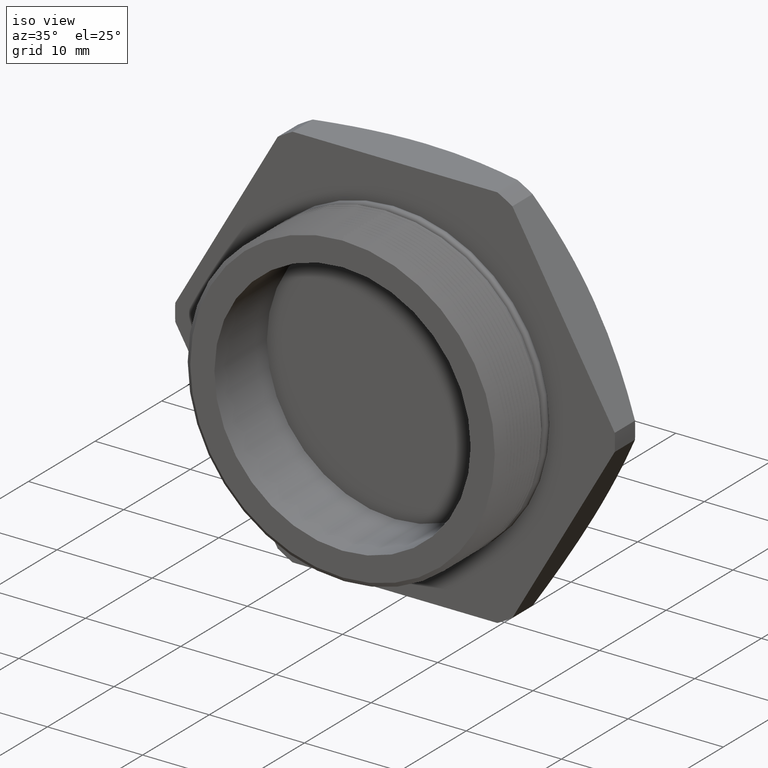
[diagram: clean part render]
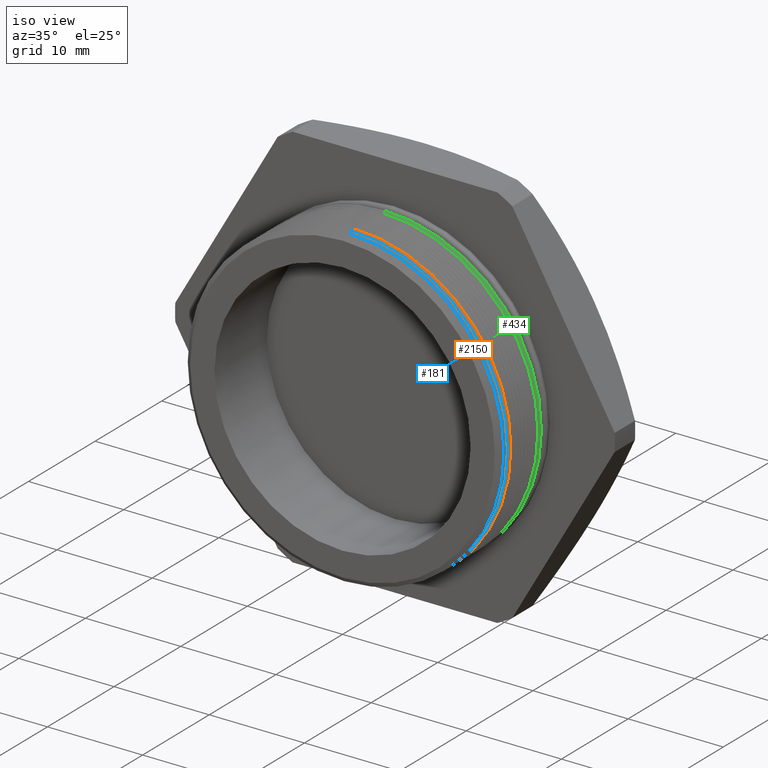
[diagram: same view with three faces highlighted in distinct colors, each labeled with its STEP entity id]
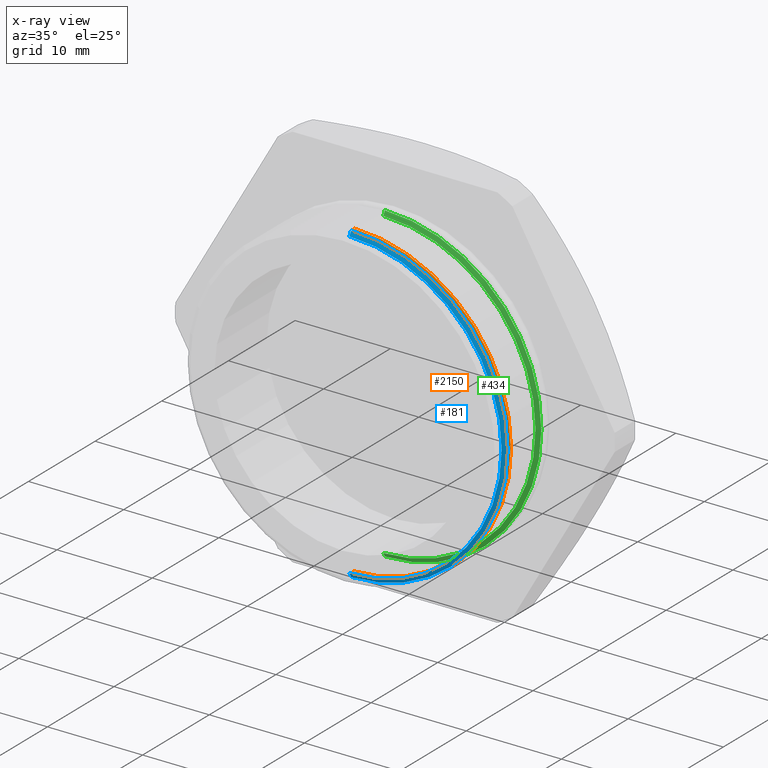
[diagram: x-ray of the same camera — body ghosted, the three highlighted faces saturated]
A machine part, iso view with three faces highlighted in distinct colors.
The next image is the same camera in x-ray (body ghosted, the three faces saturated) — at least one of them is partly hidden behind the body in this view.
Their STEP definitions:

[orange] entity #2150 — the highlighted conical surface has half-angle 60 deg.
#194 = EDGE_CURVE ( 'NONE', #195, #196, #902, .T. ) ;
#195 = VERTEX_POINT ( 'NONE', #954 ) ;
#196 = VERTEX_POINT ( 'NONE', #953 ) ;
#199 = ORIENTED_EDGE ( 'NONE', *, *, #194, .F. ) ;
#200 = ORIENTED_EDGE ( 'NONE', *, *, #201, .T. ) ;
#201 = EDGE_CURVE ( 'NONE', #195, #202, #948, .T. ) ;
#202 = VERTEX_POINT ( 'NONE', #944 ) ;
#203 = ORIENTED_EDGE ( 'NONE', *, *, #204, .T. ) ;
#204 = EDGE_CURVE ( 'NONE', #202, #205, #943, .T. ) ;
#205 = VERTEX_POINT ( 'NONE', #938 ) ;
#902 = CIRCLE ( 'NONE', #958, 0.6300000000000000000 ) ;
#938 = CARTESIAN_POINT ( 'NONE',  ( 7.927389882373304600E-017, 0.06999999999999979800, 0.6473205080756885300 ) ) ;
#939 = DIRECTION ( 'NONE',  ( 0.0000000000000000000, 0.0000000000000000000, -1.000000000000000000 ) ) ;
#940 = DIRECTION ( 'NONE',  ( 0.0000000000000000000, -1.000000000000000000, 0.0000000000000000000 ) ) ;
#941 = CARTESIAN_POINT ( 'NONE',  ( 0.0000000000000000000, 0.06999999999999979800, 0.0000000000000000000 ) ) ;
#942 = AXIS2_PLACEMENT_3D ( 'NONE', #941, #940, #939 ) ;
#943 = CIRCLE ( 'NONE', #942, 0.6473205080756885300 ) ;
#944 = CARTESIAN_POINT ( 'NONE',  ( 0.0000000000000000000, 0.06999999999999979800, -0.6473205080756885300 ) ) ;
#945 = DIRECTION ( 'NONE',  ( 1.060575238724909300E-016, 0.4999999999999965600, -0.8660254037844405900 ) ) ;
#946 = VECTOR ( 'NONE', #945, 39.37007874015748100 ) ;
#947 = CARTESIAN_POINT ( 'NONE',  ( 7.927389882373304600E-017, 0.06999999999999979800, -0.6473205080756885300 ) ) ;
#948 = LINE ( 'NONE', #947, #946 ) ;
#953 = CARTESIAN_POINT ( 'NONE',  ( 0.0000000000000000000, 0.05999999999999990800, 0.6300000000000000000 ) ) ;
#954 = CARTESIAN_POINT ( 'NONE',  ( 7.821332358500815000E-017, 0.05999999999999990800, -0.6300000000000000000 ) ) ;
#955 = DIRECTION ( 'NONE',  ( 0.0000000000000000000, 0.0000000000000000000, -1.000000000000000000 ) ) ;
#956 = DIRECTION ( 'NONE',  ( 0.0000000000000000000, -1.000000000000000000, 0.0000000000000000000 ) ) ;
#957 = CARTESIAN_POINT ( 'NONE',  ( 0.0000000000000000000, 0.05999999999999990800, 0.0000000000000000000 ) ) ;
#958 = AXIS2_PLACEMENT_3D ( 'NONE', #957, #956, #955 ) ;
#1858 = LINE ( 'NONE', #1921, #1920 ) ;
#1862 = DIRECTION ( 'NONE',  ( 0.0000000000000000000, 0.0000000000000000000, 1.000000000000000000 ) ) ;
#1863 = DIRECTION ( 'NONE',  ( 0.0000000000000000000, 1.000000000000000000, 0.0000000000000000000 ) ) ;
#1864 = CARTESIAN_POINT ( 'NONE',  ( 0.0000000000000000000, 0.06999999999999979800, 0.0000000000000000000 ) ) ;
#1865 = AXIS2_PLACEMENT_3D ( 'NONE', #1864, #1863, #1862 ) ;
#1866 = CONICAL_SURFACE ( 'NONE', #1865, 0.6473205080756885300, 1.047197551196601600 ) ;
#1868 = FACE_OUTER_BOUND ( 'NONE', #2149, .T. ) ;
#1919 = DIRECTION ( 'NONE',  ( 0.0000000000000000000, 0.4999999999999965600, 0.8660254037844405900 ) ) ;
#1920 = VECTOR ( 'NONE', #1919, 39.37007874015748100 ) ;
#1921 = CARTESIAN_POINT ( 'NONE',  ( 0.0000000000000000000, 0.06999999999999979800, 0.6473205080756885300 ) ) ;
#2149 = EDGE_LOOP ( 'NONE', ( #199, #200, #203, #2151 ) ) ;
#2150 = ADVANCED_FACE ( 'NONE', ( #1868 ), #1866, .T. ) ;
#2151 = ORIENTED_EDGE ( 'NONE', *, *, #2154, .F. ) ;
#2154 = EDGE_CURVE ( 'NONE', #196, #205, #1858, .T. ) ;

[blue] entity #181 — the highlighted conical surface has half-angle 60 deg.
#178 = ORIENTED_EDGE ( 'NONE', *, *, #210, .F. ) ;
#179 = ORIENTED_EDGE ( 'NONE', *, *, #184, .T. ) ;
#181 = ADVANCED_FACE ( 'NONE', ( #928 ), #927, .T. ) ;
#183 = EDGE_LOOP ( 'NONE', ( #178, #179, #186, #189 ) ) ;
#184 = EDGE_CURVE ( 'NONE', #211, #185, #918, .T. ) ;
#185 = VERTEX_POINT ( 'NONE', #914 ) ;
#186 = ORIENTED_EDGE ( 'NONE', *, *, #187, .T. ) ;
#187 = EDGE_CURVE ( 'NONE', #185, #188, #913, .T. ) ;
#188 = VERTEX_POINT ( 'NONE', #908 ) ;
#189 = ORIENTED_EDGE ( 'NONE', *, *, #190, .F. ) ;
#190 = EDGE_CURVE ( 'NONE', #212, #188, #907, .T. ) ;
#210 = EDGE_CURVE ( 'NONE', #211, #212, #932, .T. ) ;
#211 = VERTEX_POINT ( 'NONE', #986 ) ;
#212 = VERTEX_POINT ( 'NONE', #985 ) ;
#904 = DIRECTION ( 'NONE',  ( 0.0000000000000000000, 0.4999999999999965600, 0.8660254037844405900 ) ) ;
#905 = VECTOR ( 'NONE', #904, 39.37007874015748100 ) ;
#906 = CARTESIAN_POINT ( 'NONE',  ( 0.0000000000000000000, 0.04999999999999980800, 0.6473205080756885300 ) ) ;
#907 = LINE ( 'NONE', #906, #905 ) ;
#908 = CARTESIAN_POINT ( 'NONE',  ( 7.927389882373304600E-017, 0.04999999999999980800, 0.6473205080756885300 ) ) ;
#909 = DIRECTION ( 'NONE',  ( 0.0000000000000000000, 0.0000000000000000000, -1.000000000000000000 ) ) ;
#910 = DIRECTION ( 'NONE',  ( 0.0000000000000000000, -1.000000000000000000, 0.0000000000000000000 ) ) ;
#911 = CARTESIAN_POINT ( 'NONE',  ( 0.0000000000000000000, 0.04999999999999980800, 0.0000000000000000000 ) ) ;
#912 = AXIS2_PLACEMENT_3D ( 'NONE', #911, #910, #909 ) ;
#913 = CIRCLE ( 'NONE', #912, 0.6473205080756885300 ) ;
#914 = CARTESIAN_POINT ( 'NONE',  ( 0.0000000000000000000, 0.04999999999999980800, -0.6473205080756885300 ) ) ;
#915 = DIRECTION ( 'NONE',  ( 1.060575238724909300E-016, 0.4999999999999965600, -0.8660254037844405900 ) ) ;
#916 = VECTOR ( 'NONE', #915, 39.37007874015748100 ) ;
#917 = CARTESIAN_POINT ( 'NONE',  ( 7.927389882373304600E-017, 0.04999999999999980800, -0.6473205080756885300 ) ) ;
#918 = LINE ( 'NONE', #917, #916 ) ;
#922 = DIRECTION ( 'NONE',  ( 0.0000000000000000000, 0.0000000000000000000, 1.000000000000000000 ) ) ;
#923 = DIRECTION ( 'NONE',  ( 0.0000000000000000000, 1.000000000000000000, 0.0000000000000000000 ) ) ;
#924 = CARTESIAN_POINT ( 'NONE',  ( 0.0000000000000000000, 0.04999999999999980800, 0.0000000000000000000 ) ) ;
#925 = AXIS2_PLACEMENT_3D ( 'NONE', #924, #923, #922 ) ;
#927 = CONICAL_SURFACE ( 'NONE', #925, 0.6473205080756885300, 1.047197551196601600 ) ;
#928 = FACE_OUTER_BOUND ( 'NONE', #183, .T. ) ;
#932 = CIRCLE ( 'NONE', #990, 0.6300000000000000000 ) ;
#985 = CARTESIAN_POINT ( 'NONE',  ( 0.0000000000000000000, 0.03999999999999988300, 0.6300000000000000000 ) ) ;
#986 = CARTESIAN_POINT ( 'NONE',  ( 7.821332358500815000E-017, 0.03999999999999988300, -0.6300000000000000000 ) ) ;
#987 = DIRECTION ( 'NONE',  ( 0.0000000000000000000, 0.0000000000000000000, -1.000000000000000000 ) ) ;
#988 = DIRECTION ( 'NONE',  ( 0.0000000000000000000, -1.000000000000000000, 0.0000000000000000000 ) ) ;
#989 = CARTESIAN_POINT ( 'NONE',  ( 0.0000000000000000000, 0.03999999999999988300, 0.0000000000000000000 ) ) ;
#990 = AXIS2_PLACEMENT_3D ( 'NONE', #989, #988, #987 ) ;

[green] entity #434 — the highlighted conical surface has half-angle 60 deg.
#407 = VERTEX_POINT ( 'NONE', #1371 ) ;
#408 = ORIENTED_EDGE ( 'NONE', *, *, #409, .T. ) ;
#409 = EDGE_CURVE ( 'NONE', #407, #410, #1370, .T. ) ;
#410 = VERTEX_POINT ( 'NONE', #1365 ) ;
#411 = ORIENTED_EDGE ( 'NONE', *, *, #438, .F. ) ;
#426 = EDGE_CURVE ( 'NONE', #427, #428, #1407, .T. ) ;
#427 = VERTEX_POINT ( 'NONE', #1402 ) ;
#428 = VERTEX_POINT ( 'NONE', #1401 ) ;
#434 = ADVANCED_FACE ( 'NONE', ( #1392 ), #1390, .T. ) ;
#435 = EDGE_LOOP ( 'NONE', ( #436, #437, #408, #411 ) ) ;
#436 = ORIENTED_EDGE ( 'NONE', *, *, #426, .F. ) ;
#437 = ORIENTED_EDGE ( 'NONE', *, *, #488, .T. ) ;
#438 = EDGE_CURVE ( 'NONE', #428, #410, #1391, .T. ) ;
#488 = EDGE_CURVE ( 'NONE', #427, #407, #1474, .T. ) ;
#1365 = CARTESIAN_POINT ( 'NONE',  ( 7.927389882373304600E-017, 0.2499999999999998100, 0.6473205080756885300 ) ) ;
#1366 = DIRECTION ( 'NONE',  ( 0.0000000000000000000, 0.0000000000000000000, -1.000000000000000000 ) ) ;
#1367 = DIRECTION ( 'NONE',  ( 0.0000000000000000000, -1.000000000000000000, 0.0000000000000000000 ) ) ;
#1368 = CARTESIAN_POINT ( 'NONE',  ( 0.0000000000000000000, 0.2499999999999998100, 0.0000000000000000000 ) ) ;
#1369 = AXIS2_PLACEMENT_3D ( 'NONE', #1368, #1367, #1366 ) ;
#1370 = CIRCLE ( 'NONE', #1369, 0.6473205080756885300 ) ;
#1371 = CARTESIAN_POINT ( 'NONE',  ( 0.0000000000000000000, 0.2499999999999998100, -0.6473205080756885300 ) ) ;
#1383 = DIRECTION ( 'NONE',  ( 0.0000000000000000000, 0.4999999999999965600, 0.8660254037844405900 ) ) ;
#1384 = VECTOR ( 'NONE', #1383, 39.37007874015748100 ) ;
#1385 = CARTESIAN_POINT ( 'NONE',  ( 0.0000000000000000000, 0.2499999999999998100, 0.6473205080756885300 ) ) ;
#1386 = DIRECTION ( 'NONE',  ( 0.0000000000000000000, 0.0000000000000000000, 1.000000000000000000 ) ) ;
#1387 = DIRECTION ( 'NONE',  ( 0.0000000000000000000, 1.000000000000000000, 0.0000000000000000000 ) ) ;
#1388 = CARTESIAN_POINT ( 'NONE',  ( 0.0000000000000000000, 0.2499999999999998100, 0.0000000000000000000 ) ) ;
#1389 = AXIS2_PLACEMENT_3D ( 'NONE', #1388, #1387, #1386 ) ;
#1390 = CONICAL_SURFACE ( 'NONE', #1389, 0.6473205080756885300, 1.047197551196601600 ) ;
#1391 = LINE ( 'NONE', #1385, #1384 ) ;
#1392 = FACE_OUTER_BOUND ( 'NONE', #435, .T. ) ;
#1401 = CARTESIAN_POINT ( 'NONE',  ( 0.0000000000000000000, 0.2399999999999999100, 0.6300000000000000000 ) ) ;
#1402 = CARTESIAN_POINT ( 'NONE',  ( 7.821332358500815000E-017, 0.2399999999999999100, -0.6300000000000000000 ) ) ;
#1403 = DIRECTION ( 'NONE',  ( 0.0000000000000000000, 0.0000000000000000000, -1.000000000000000000 ) ) ;
#1404 = DIRECTION ( 'NONE',  ( 0.0000000000000000000, -1.000000000000000000, 0.0000000000000000000 ) ) ;
#1405 = CARTESIAN_POINT ( 'NONE',  ( 0.0000000000000000000, 0.2399999999999999100, 0.0000000000000000000 ) ) ;
#1406 = AXIS2_PLACEMENT_3D ( 'NONE', #1405, #1404, #1403 ) ;
#1407 = CIRCLE ( 'NONE', #1406, 0.6300000000000000000 ) ;
#1471 = DIRECTION ( 'NONE',  ( 1.060575238724909300E-016, 0.4999999999999965600, -0.8660254037844405900 ) ) ;
#1472 = VECTOR ( 'NONE', #1471, 39.37007874015748100 ) ;
#1473 = CARTESIAN_POINT ( 'NONE',  ( 7.927389882373304600E-017, 0.2499999999999998100, -0.6473205080756885300 ) ) ;
#1474 = LINE ( 'NONE', #1473, #1472 ) ;